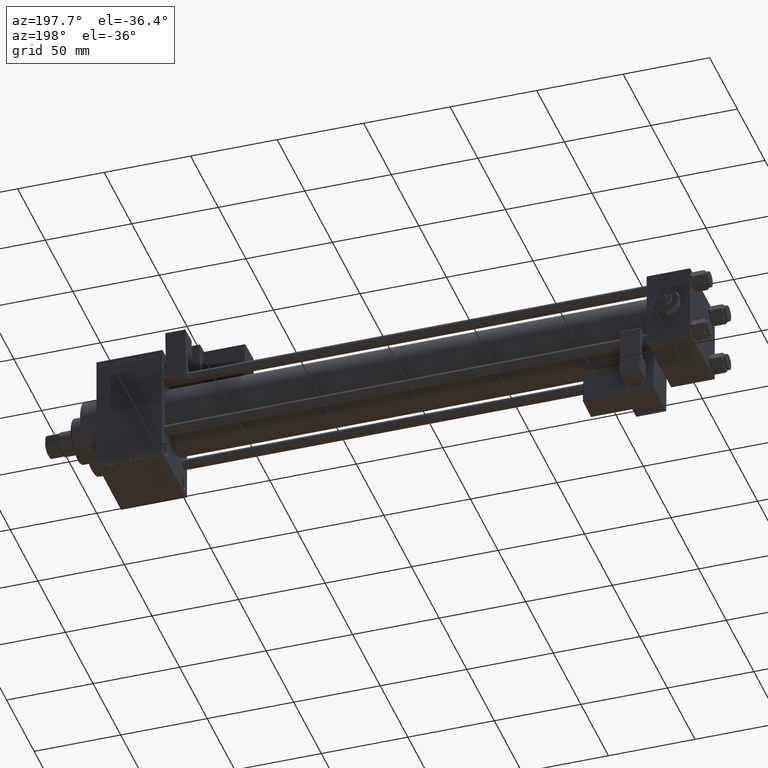
[diagram: clean part render]
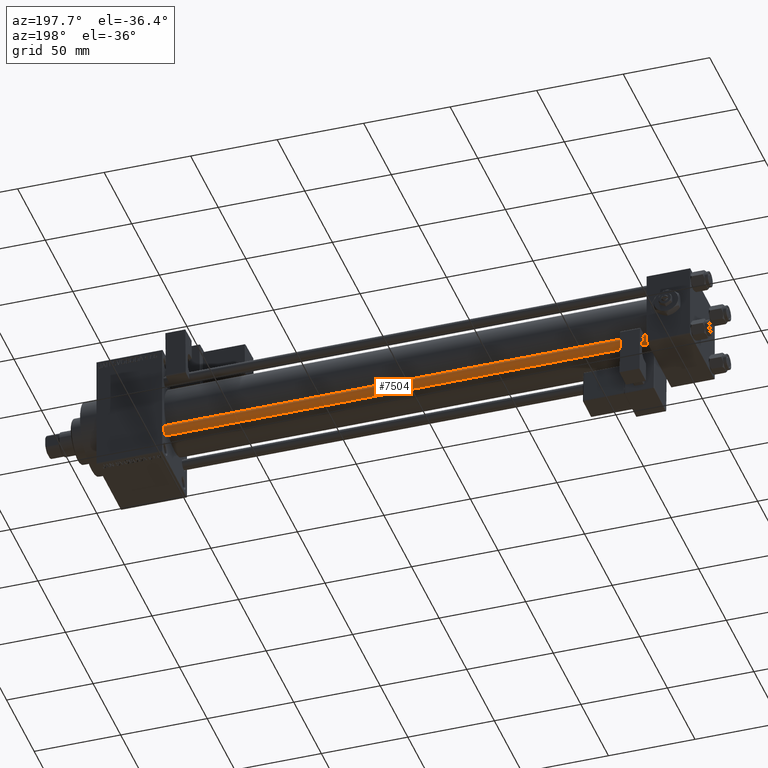
[diagram: same view with one face highlighted and labeled with its STEP entity id]
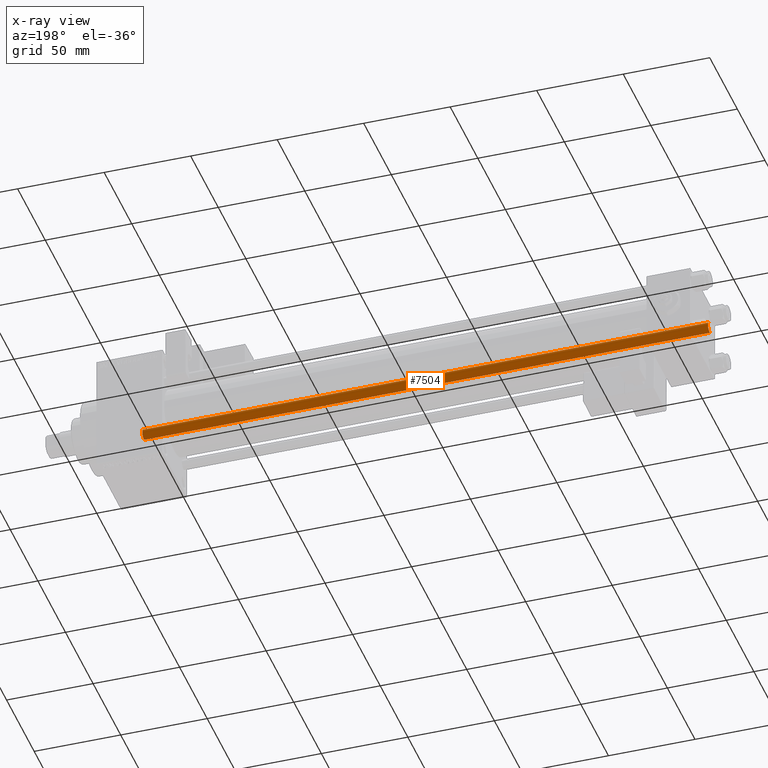
[diagram: x-ray of the same camera — body ghosted, the highlighted face saturated]
A machine part, auxiliary view. The second image highlights one B-rep face of the part: STEP entity #7504.
The next image is the same camera in x-ray: the body ghosted, the highlighted face saturated — about 0% of this face is hidden behind the body in this view.
In plain terms, the highlighted cylindrical surface (edge-blend (fillet) strip) has radius 3 mm, axis along (1, -0, 0).
Its self-contained STEP definition (entity closure, byte-faithful):
#2783 = EDGE_LOOP ( 'NONE', ( #21777, #32061, #20835, #13754 ) ) ;
#5316 = VERTEX_POINT ( 'NONE', #49000 ) ;
#6157 = VERTEX_POINT ( 'NONE', #24960 ) ;
#7504 = ADVANCED_FACE ( 'NONE', ( #17720 ), #49315, .T. ) ;
#7713 = DIRECTION ( 'NONE',  ( 0.000000000000000000, 0.000000000000000000, -1.000000000000000000 ) ) ;
#7738 = VERTEX_POINT ( 'NONE', #9924 ) ;
#7848 = LINE ( 'NONE', #47694, #44266 ) ;
#9924 = CARTESIAN_POINT ( 'NONE',  ( 3.000000000000000444, 3.673940397442060361E-16, 0.5000000000000559552 ) ) ;
#10524 = DIRECTION ( 'NONE',  ( -0.000000000000000000, -0.000000000000000000, 1.000000000000000000 ) ) ;
#12335 = CARTESIAN_POINT ( 'NONE',  ( 0.000000000000000000, 0.000000000000000000, 327.5000000000000000 ) ) ;
#13754 = ORIENTED_EDGE ( 'NONE', *, *, #36720, .F. ) ;
#13972 = AXIS2_PLACEMENT_3D ( 'NONE', #30070, #10524, #17994 ) ;
#17720 = FACE_OUTER_BOUND ( 'NONE', #2783, .T. ) ;
#17994 = DIRECTION ( 'NONE',  ( 1.000000000000000000, 0.000000000000000000, 0.000000000000000000 ) ) ;
#20835 = ORIENTED_EDGE ( 'NONE', *, *, #36128, .T. ) ;
#21422 = VECTOR ( 'NONE', #25576, 1000.000000000000000 ) ;
#21777 = ORIENTED_EDGE ( 'NONE', *, *, #23123, .T. ) ;
#23123 = EDGE_CURVE ( 'NONE', #6157, #36600, #45657, .T. ) ;
#24960 = CARTESIAN_POINT ( 'NONE',  ( -3.000000000000000444, 0.000000000000000000, 327.5000000000000000 ) ) ;
#25576 = DIRECTION ( 'NONE',  ( -0.000000000000000000, -0.000000000000000000, -1.000000000000000000 ) ) ;
#26769 = AXIS2_PLACEMENT_3D ( 'NONE', #12335, #7713, #27769 ) ;
#27769 = DIRECTION ( 'NONE',  ( 1.000000000000000000, 0.000000000000000000, 0.000000000000000000 ) ) ;
#28757 = DIRECTION ( 'NONE',  ( -0.000000000000000000, -0.000000000000000000, -1.000000000000000000 ) ) ;
#29177 = LINE ( 'NONE', #33292, #21422 ) ;
#30070 = CARTESIAN_POINT ( 'NONE',  ( 0.000000000000000000, 0.000000000000000000, 0.5000000000000559552 ) ) ;
#32061 = ORIENTED_EDGE ( 'NONE', *, *, #43716, .T. ) ;
#33147 = AXIS2_PLACEMENT_3D ( 'NONE', #33393, #28757, #44174 ) ;
#33292 = CARTESIAN_POINT ( 'NONE',  ( -3.000000000000000444, 0.000000000000000000, 328.0000000000000000 ) ) ;
#33393 = CARTESIAN_POINT ( 'NONE',  ( 0.000000000000000000, 0.000000000000000000, 328.0000000000000000 ) ) ;
#36128 = EDGE_CURVE ( 'NONE', #7738, #5316, #36979, .T. ) ;
#36600 = VERTEX_POINT ( 'NONE', #47943 ) ;
#36720 = EDGE_CURVE ( 'NONE', #6157, #5316, #29177, .T. ) ;
#36979 = CIRCLE ( 'NONE', #13972, 3.000000000000000444 ) ;
#43716 = EDGE_CURVE ( 'NONE', #36600, #7738, #7848, .T. ) ;
#44174 = DIRECTION ( 'NONE',  ( -1.000000000000000000, 0.000000000000000000, 0.000000000000000000 ) ) ;
#44266 = VECTOR ( 'NONE', #47190, 1000.000000000000000 ) ;
#45657 = CIRCLE ( 'NONE', #26769, 3.000000000000000444 ) ;
#47190 = DIRECTION ( 'NONE',  ( -0.000000000000000000, -0.000000000000000000, -1.000000000000000000 ) ) ;
#47694 = CARTESIAN_POINT ( 'NONE',  ( 3.000000000000000444, 3.673940397442060361E-16, 328.0000000000000000 ) ) ;
#47943 = CARTESIAN_POINT ( 'NONE',  ( 3.000000000000000444, 3.673940397442060361E-16, 327.5000000000000000 ) ) ;
#49000 = CARTESIAN_POINT ( 'NONE',  ( -3.000000000000000444, 0.000000000000000000, 0.5000000000000559552 ) ) ;
#49315 = CYLINDRICAL_SURFACE ( 'NONE', #33147, 3.000000000000000444 ) ;